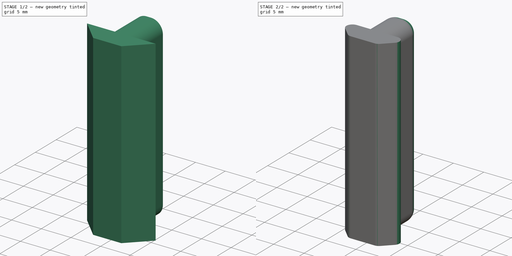
[diagram: build sequence overview — one tinted view per stage of 2, left to right]
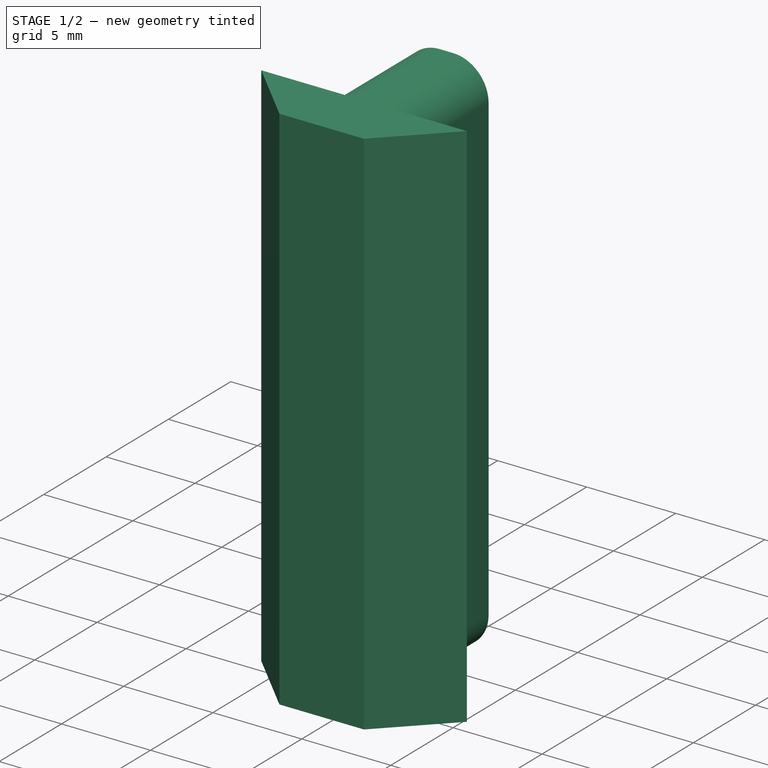
[diagram: stage 1 of 2 — iso view after this stage's code; geometry added in this stage tinted green]
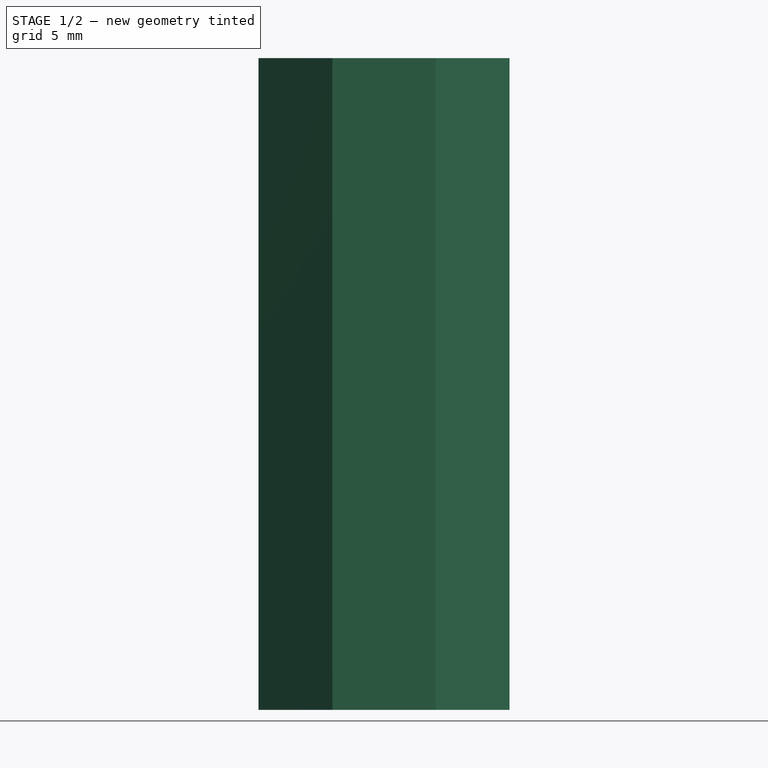
[diagram: stage 1 of 2 — front view after this stage's code; geometry added in this stage tinted green]
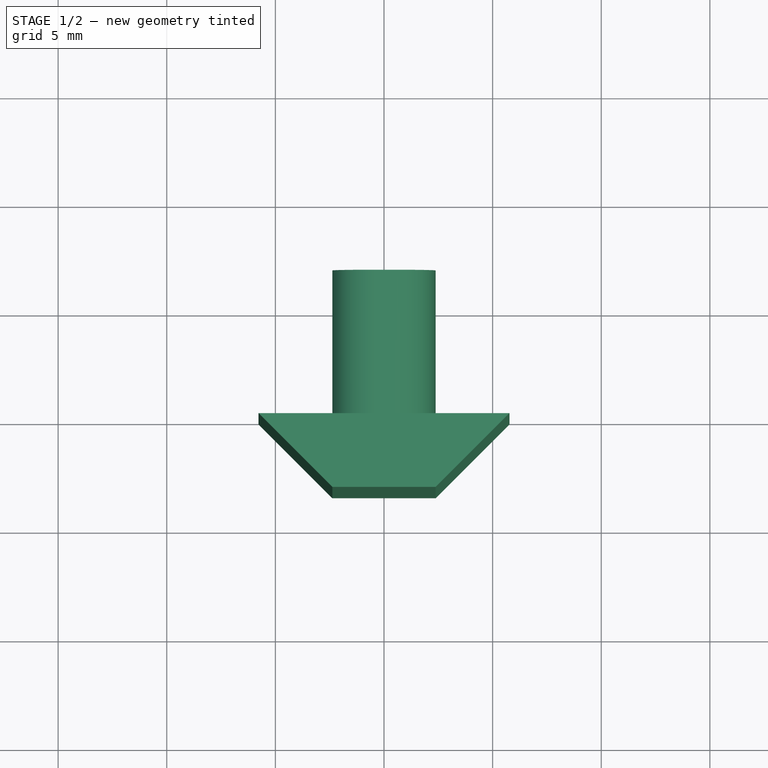
[diagram: stage 1 of 2 — top view after this stage's code; geometry added in this stage tinted green]
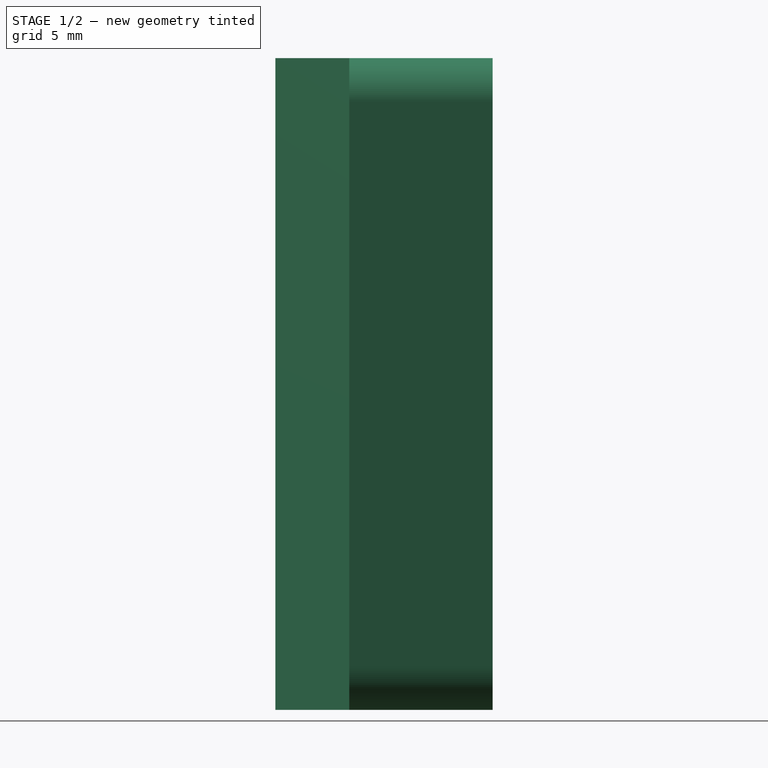
[diagram: stage 1 of 2 — right view after this stage's code; geometry added in this stage tinted green]
FCSTD DOCUMENT  (FreeCAD 0.17R7796 (Git))
Label: extrusion_slider
License: CreativeCommons Attribution-ShareAlike
LicenseURL: http://creativecommons.org/licenses/by-sa/4.0/
objects: PartDesign::Fillet×3, Sketcher::SketchObject×1, PartDesign::Pad×1, PartDesign::Body×1
note: 7 computed .brp shape members not serialized (recipe doc carries the construction recipe); baked Part::Feature solids carry a one-line shape summary decoded from their .brp

FEATURE [Sketcher::SketchObject] Sketch
  MapMode = 5
  Support = -> [XY_Plane]
  sketch-geometry (8):
    g0: LineSegment StartX=-2.375 StartY=6.6 StartZ=0 EndX=-2.375 EndY=0 EndZ=0
    g1: LineSegment StartX=-2.375 StartY=0 StartZ=0 EndX=-5.775 EndY=0 EndZ=0
    g2: LineSegment StartX=-5.775 StartY=0 StartZ=0 EndX=-2.375 EndY=-3.4 EndZ=0
    g3: LineSegment StartX=-2.375 StartY=-3.4 StartZ=0 EndX=2.375 EndY=-3.4 EndZ=0
    g4: LineSegment StartX=2.375 StartY=-3.4 StartZ=0 EndX=5.775 EndY=0 EndZ=0
    g5: LineSegment StartX=5.775 StartY=0 StartZ=0 EndX=2.375 EndY=0 EndZ=0
    g6: LineSegment StartX=2.375 StartY=0 StartZ=0 EndX=2.375 EndY=6.6 EndZ=0
    g7: LineSegment StartX=2.375 StartY=6.6 StartZ=0 EndX=-2.375 EndY=6.6 EndZ=0
  constraints (24):
    c: Vertical(g0)
    c: Coincident(g0,g1)
    c: PointOnObject(g1,g-1)
    c: Coincident(g1,g2)
    c: Coincident(g2,g3)
    c: Coincident(g3,g4)
    c: Coincident(g4,g5)
    c: Coincident(g5,g6)
    c: Coincident(g6,g7)
    c: Coincident(g0,g7)
    c: Horizontal(g7)
    c: Horizontal(g5)
    c: Horizontal(g1)
    c: Horizontal(g3)
    c: Vertical(g6)
    c: Equal(g5,g1)
    c: Equal(g6,g0)
    c: DistanceX(g7,g7) = 4.75
    c: DistanceX(g-1,g6) = 2.375
    c: DistanceY(g3,g6) = 10
    c: DistanceX(g3,g3) = 4.75
    c: DistanceX(g-1,g3) = 2.375
    c: Angle(g4,g2) = 1.5708
    c: DistanceX(g5,g5) = 3.4
FEATURE [PartDesign::Pad] Pad
  Length = 30
  Length2 = 100
  Profile = -> Sketch
  Type = 0
FEATURE [PartDesign::Fillet] Fillet
  Base = -> Pad [Edge4,Edge22,Edge3,Edge21]
  BaseFeature = -> Pad
  Radius = 2
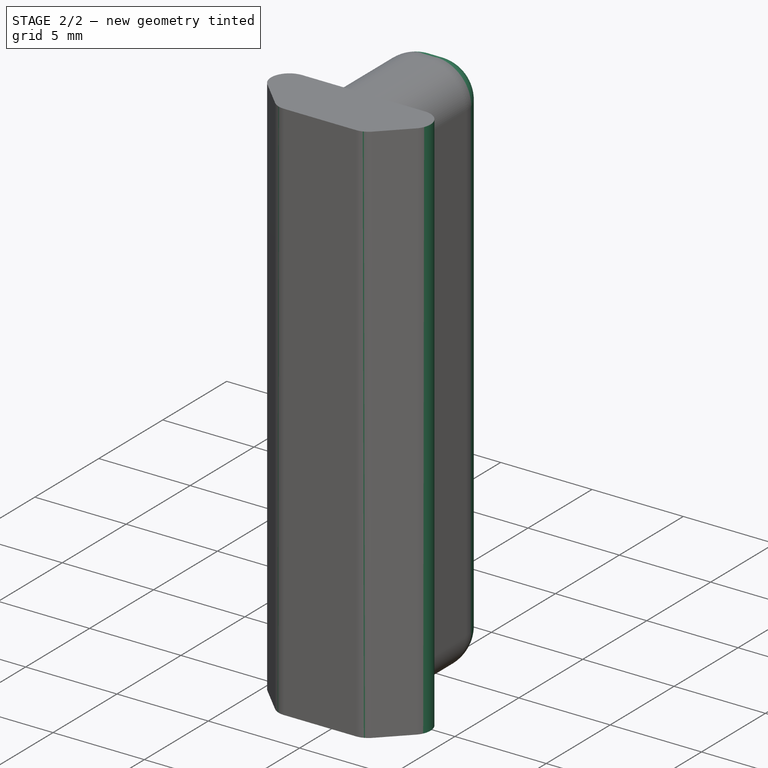
[diagram: stage 2 of 2 — iso view after this stage's code; geometry added in this stage tinted green]
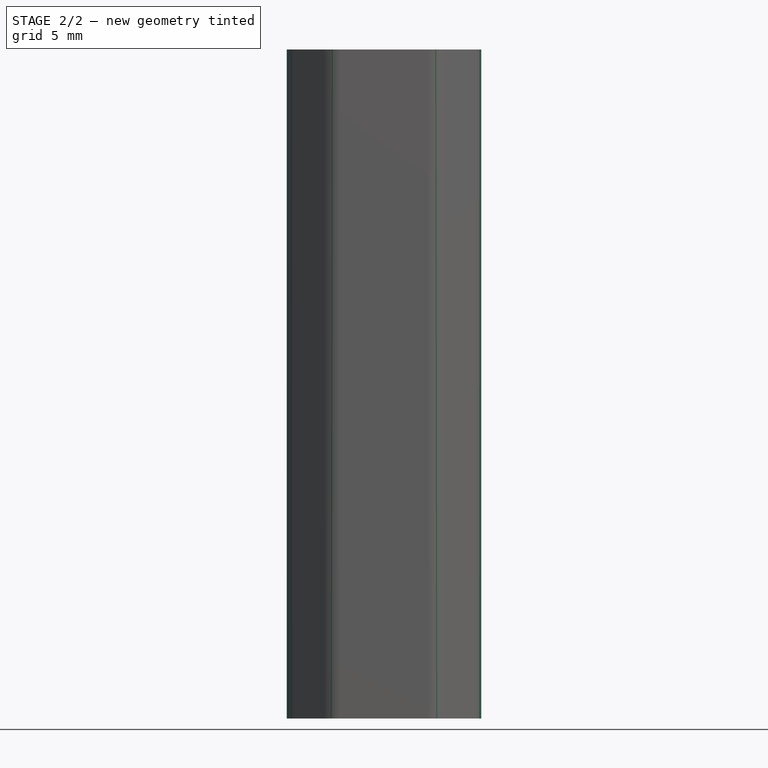
[diagram: stage 2 of 2 — front view after this stage's code; geometry added in this stage tinted green]
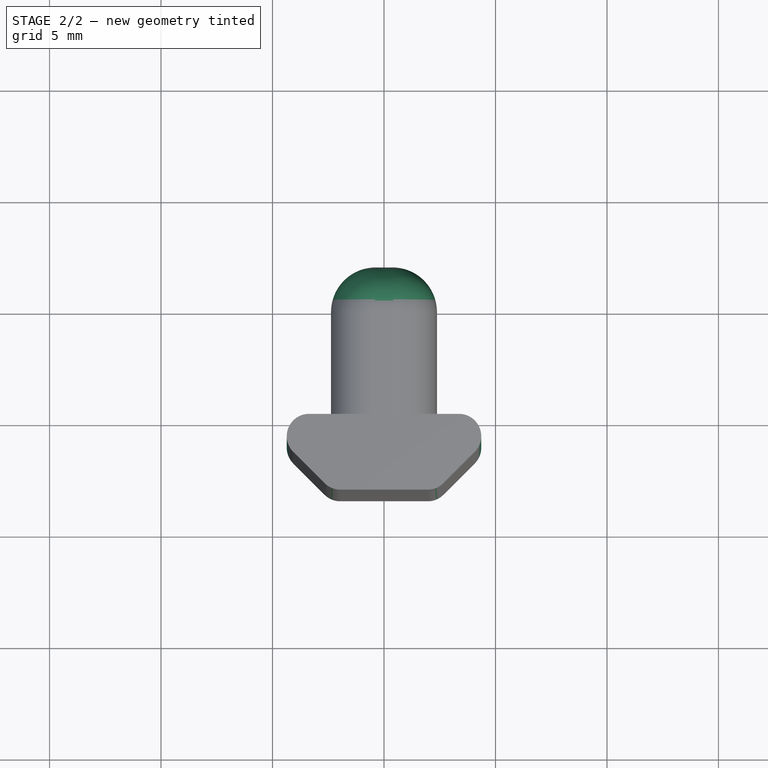
[diagram: stage 2 of 2 — top view after this stage's code; geometry added in this stage tinted green]
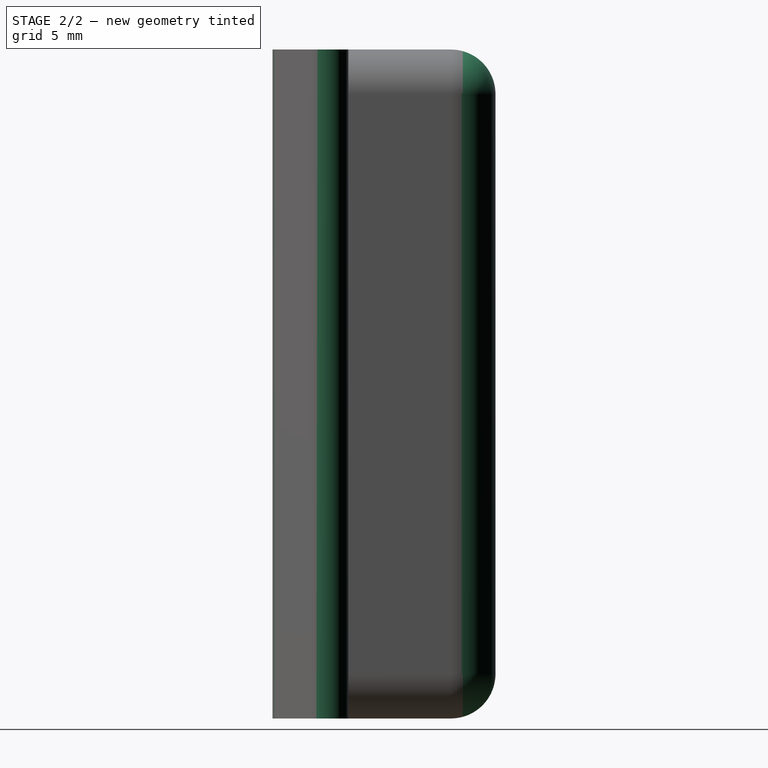
[diagram: stage 2 of 2 — right view after this stage's code; geometry added in this stage tinted green]
FEATURE [PartDesign::Fillet] Fillet001
  Base = -> Fillet [Face2]
  BaseFeature = -> Fillet
  Radius = 2
FEATURE [PartDesign::Fillet] Fillet002
  Base = -> Fillet001 [Edge16,Edge47,Edge40,Edge48]
  BaseFeature = -> Fillet001
  Radius = 1
FEATURE [PartDesign::Body] Body
  Model = -> [Sketch,Pad,Fillet,Fillet001,Fillet002]
  Origin = -> BodyOrigin
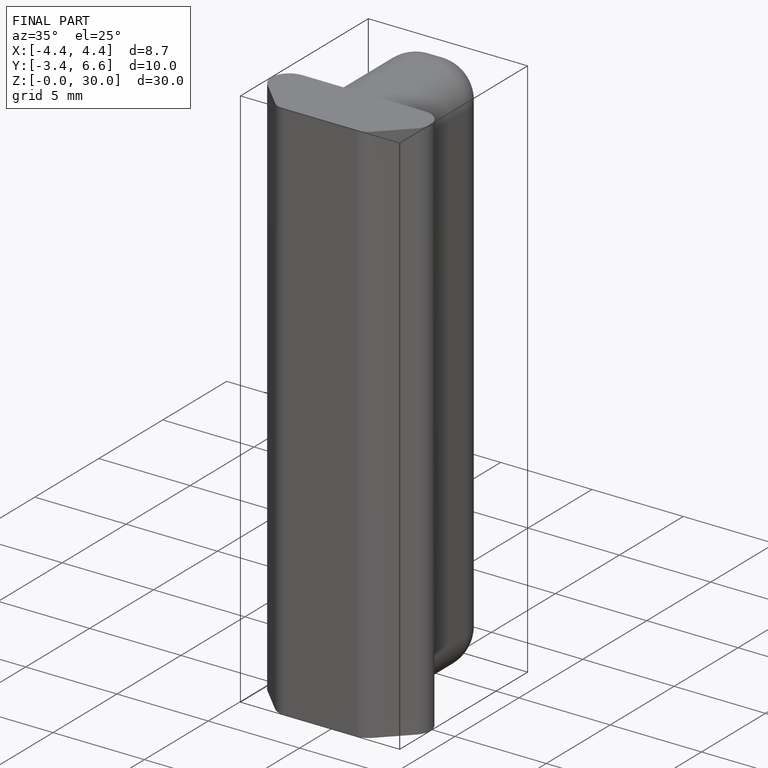
[diagram: finished part — iso view with bounding-box wireframe]
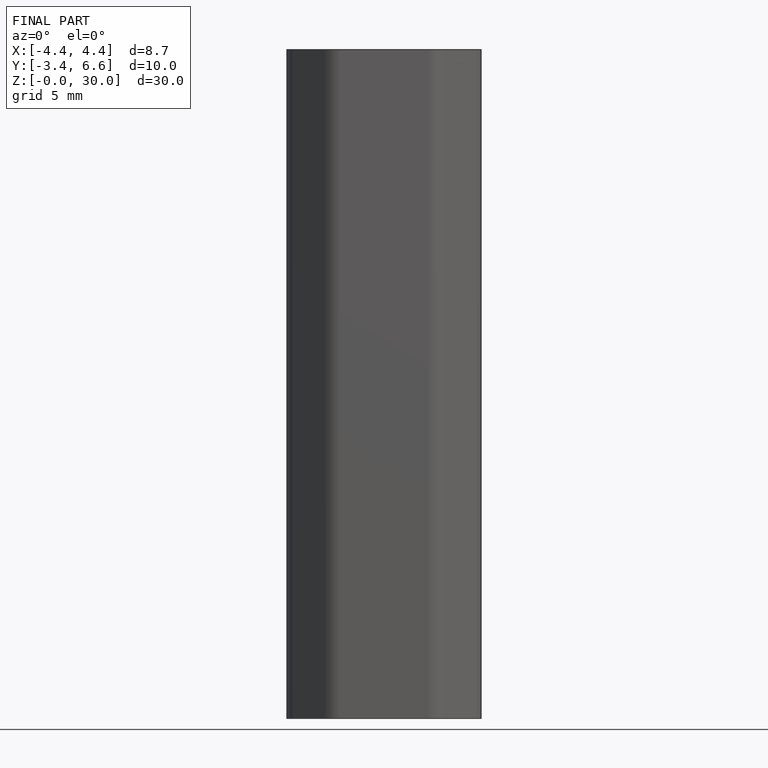
[diagram: finished part — front view with bounding-box wireframe]
